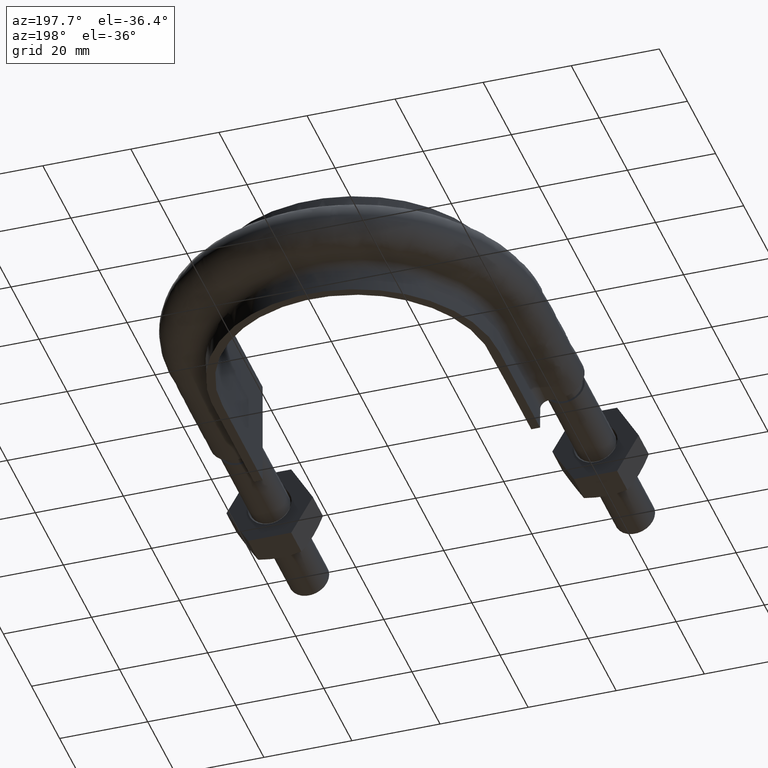
[diagram: clean part render]
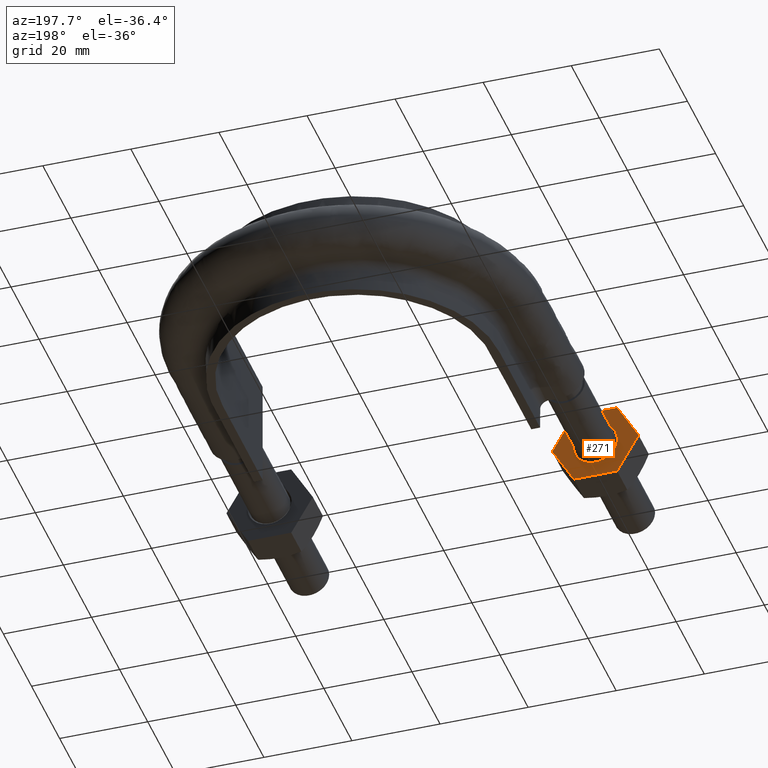
[diagram: same view with one face highlighted and labeled with its STEP entity id]
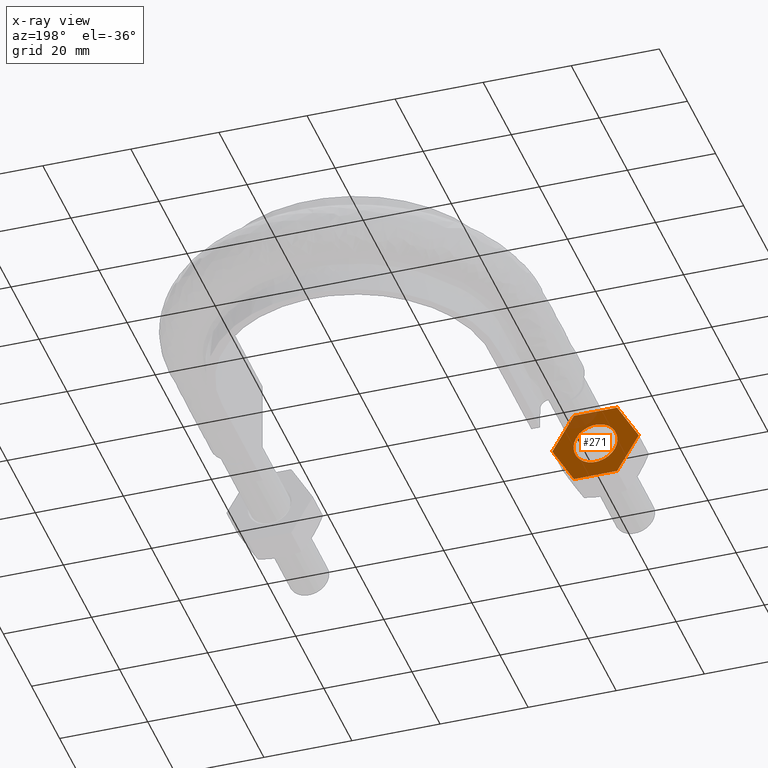
[diagram: x-ray of the same camera — body ghosted, the highlighted face saturated]
A machine part, auxiliary view. The second image highlights one B-rep face of the part: STEP entity #271.
The next image is the same camera in x-ray: the body ghosted, the highlighted face saturated — about 10% of this face is hidden behind the body in this view.
In plain terms, the highlighted planar face has unit normal (-0, -1, 0).
Its self-contained STEP definition (entity closure, byte-faithful):
#271 = ADVANCED_FACE( '', ( #414, #415 ), #416, .F. );
#414 = FACE_OUTER_BOUND( '', #1411, .T. );
#415 = FACE_BOUND( '', #1412, .T. );
#416 = PLANE( '', #1413 );
#1411 = EDGE_LOOP( '', ( #1814, #1815, #1816, #1817, #1818, #1819, #1820, #1821, #1822, #1823, #1824, #1825 ) );
#1412 = EDGE_LOOP( '', ( #1826 ) );
#1413 = AXIS2_PLACEMENT_3D( '', #1827, #1828, #1829 );
#1814 = ORIENTED_EDGE( '', *, *, #2101, .T. );
#1815 = ORIENTED_EDGE( '', *, *, #2077, .T. );
#1816 = ORIENTED_EDGE( '', *, *, #2102, .T. );
#1817 = ORIENTED_EDGE( '', *, *, #2099, .T. );
#1818 = ORIENTED_EDGE( '', *, *, #2057, .T. );
#1819 = ORIENTED_EDGE( '', *, *, #2093, .T. );
#1820 = ORIENTED_EDGE( '', *, *, #2087, .T. );
#1821 = ORIENTED_EDGE( '', *, *, #2062, .T. );
#1822 = ORIENTED_EDGE( '', *, *, #2066, .T. );
#1823 = ORIENTED_EDGE( '', *, *, #2071, .T. );
#1824 = ORIENTED_EDGE( '', *, *, #2097, .T. );
#1825 = ORIENTED_EDGE( '', *, *, #2095, .T. );
#1826 = ORIENTED_EDGE( '', *, *, #2090, .F. );
#1827 = CARTESIAN_POINT( '', ( -41.9000000000000, 28.0000000000000, 8.48704895708750 ) );
#1828 = DIRECTION( '', ( -2.44921270764476E-016, -1.00000000000000, 6.12303176911189E-017 ) );
#1829 = DIRECTION( '', ( -1.00000000000000, 2.44921270764476E-016, -3.01888774004914E-048 ) );
#2057 = EDGE_CURVE( '', #2246, #2244, #2247, .F. );
#2062 = EDGE_CURVE( '', #2256, #2254, #2257, .T. );
#2066 = EDGE_CURVE( '', #2254, #2261, #2263, .F. );
#2071 = EDGE_CURVE( '', #2261, #2269, #2271, .T. );
#2077 = EDGE_CURVE( '', #2281, #2279, #2282, .T. );
#2087 = EDGE_CURVE( '', #2297, #2256, #2298, .F. );
#2090 = EDGE_CURVE( '', #2301, #2301, #2302, .F. );
#2093 = EDGE_CURVE( '', #2244, #2297, #2306, .T. );
#2095 = EDGE_CURVE( '', #2309, #2307, #2310, .T. );
#2097 = EDGE_CURVE( '', #2269, #2309, #2312, .F. );
#2099 = EDGE_CURVE( '', #2314, #2246, #2315, .T. );
#2101 = EDGE_CURVE( '', #2307, #2281, #2317, .F. );
#2102 = EDGE_CURVE( '', #2279, #2314, #2318, .F. );
#2244 = VERTEX_POINT( '', #2751 );
#2246 = VERTEX_POINT( '', #2754 );
#2247 = CIRCLE( '', #2755, 9.80000000000000 );
#2254 = VERTEX_POINT( '', #2773 );
#2256 = VERTEX_POINT( '', #2776 );
#2257 = LINE( '', #2777, #2778 );
#2261 = VERTEX_POINT( '', #2783 );
#2263 = CIRCLE( '', #2786, 9.80000000000000 );
#2269 = VERTEX_POINT( '', #2802 );
#2271 = LINE( '', #2805, #2806 );
#2279 = VERTEX_POINT( '', #2824 );
#2281 = VERTEX_POINT( '', #2827 );
#2282 = LINE( '', #2828, #2829 );
#2297 = VERTEX_POINT( '', #2850 );
#2298 = CIRCLE( '', #2851, 9.80000000000000 );
#2301 = VERTEX_POINT( '', #2860 );
#2302 = CIRCLE( '', #2861, 5.00000000000000 );
#2306 = LINE( '', #2870, #2871 );
#2307 = VERTEX_POINT( '', #2872 );
#2309 = VERTEX_POINT( '', #2875 );
#2310 = LINE( '', #2876, #2877 );
#2312 = CIRCLE( '', #2880, 9.80000000000000 );
#2314 = VERTEX_POINT( '', #2887 );
#2315 = LINE( '', #2888, #2889 );
#2317 = CIRCLE( '', #2892, 9.80000000000000 );
#2318 = CIRCLE( '', #2893, 9.80000000000000 );
#2751 = CARTESIAN_POINT( '', ( -32.1225006406971, 28.0000000000000, -8.50000000000000 ) );
#2754 = CARTESIAN_POINT( '', ( -32.0775337474838, 28.0000000000000, -8.47403835209865 ) );
#2755 = AXIS2_PLACEMENT_3D( '', #3134, #3135, #3136 );
#2773 = CARTESIAN_POINT( '', ( -46.7999656118192, 28.0000000000000, -0.0259616479013412 ) );
#2776 = CARTESIAN_POINT( '', ( -41.9224662525163, 28.0000000000000, -8.47403835209864 ) );
#2777 = CARTESIAN_POINT( '', ( -49.2612159321677, 28.0000000000000, 4.23704895708751 ) );
#2778 = VECTOR( '', #3139, 1000.00000000000 );
#2783 = CARTESIAN_POINT( '', ( -46.7999656118192, 28.0000000000000, 0.0259616479013226 ) );
#2786 = AXIS2_PLACEMENT_3D( '', #3145, #3146, #3147 );
#2802 = CARTESIAN_POINT( '', ( -41.9224662525162, 28.0000000000000, 8.47403835209864 ) );
#2805 = CARTESIAN_POINT( '', ( -41.9112159321677, 28.0000000000000, 8.49352447854374 ) );
#2806 = VECTOR( '', #3152, 1000.00000000000 );
#2824 = CARTESIAN_POINT( '', ( -27.2000343881808, 28.0000000000000, 0.0259616479013282 ) );
#2827 = CARTESIAN_POINT( '', ( -32.0775337474837, 28.0000000000000, 8.47403835209864 ) );
#2828 = CARTESIAN_POINT( '', ( -34.5387840678323, 28.0000000000000, 12.7370489570875 ) );
#2829 = VECTOR( '', #3160, 1000.00000000000 );
#2850 = CARTESIAN_POINT( '', ( -41.8774993593029, 28.0000000000000, -8.50000000000000 ) );
#2851 = AXIS2_PLACEMENT_3D( '', #3183, #3184, #3185 );
#2860 = CARTESIAN_POINT( '', ( -32.0000000000000, 28.0000000000000, -1.97964474674129E-015 ) );
#2861 = AXIS2_PLACEMENT_3D( '', #3187, #3188, #3189 );
#2870 = CARTESIAN_POINT( '', ( -41.9000000000000, 28.0000000000000, -8.50000000000000 ) );
#2871 = VECTOR( '', #3193, 1000.00000000000 );
#2872 = CARTESIAN_POINT( '', ( -32.1225006406971, 28.0000000000000, 8.49999999999999 ) );
#2875 = CARTESIAN_POINT( '', ( -41.8774993593029, 28.0000000000000, 8.49999999999999 ) );
#2876 = CARTESIAN_POINT( '', ( -41.9000000000000, 28.0000000000000, 8.49999999999999 ) );
#2877 = VECTOR( '', #3195, 1000.00000000000 );
#2880 = AXIS2_PLACEMENT_3D( '', #3197, #3198, #3199 );
#2887 = CARTESIAN_POINT( '', ( -27.2000343881808, 28.0000000000000, -0.0259616479013161 ) );
#2888 = CARTESIAN_POINT( '', ( -27.1887840678323, 28.0000000000000, -0.00647552145623120 ) );
#2889 = VECTOR( '', #3200, 1000.00000000000 );
#2892 = AXIS2_PLACEMENT_3D( '', #3202, #3203, #3204 );
#2893 = AXIS2_PLACEMENT_3D( '', #3205, #3206, #3207 );
#3134 = CARTESIAN_POINT( '', ( -37.0000000000000, 28.0000000000000, -1.97964474674128E-015 ) );
#3135 = DIRECTION( '', ( -2.44921270764476E-016, -1.00000000000000, 6.12303176911189E-017 ) );
#3136 = DIRECTION( '', ( 1.00000000000000, -2.44921270764476E-016, 0.000000000000000 ) );
#3139 = DIRECTION( '', ( -0.500000000000000, 1.75487645984539E-016, 0.866025403784439 ) );
#3145 = CARTESIAN_POINT( '', ( -37.0000000000000, 28.0000000000000, -1.97964474674128E-015 ) );
#3146 = DIRECTION( '', ( -2.44921270764476E-016, -1.00000000000000, 6.12303176911189E-017 ) );
#3147 = DIRECTION( '', ( 1.00000000000000, -2.44921270764476E-016, 0.000000000000000 ) );
#3152 = DIRECTION( '', ( 0.500000000000000, -6.94336247799373E-017, 0.866025403784439 ) );
#3160 = DIRECTION( '', ( 0.500000000000000, -1.75487645984539E-016, -0.866025403784439 ) );
#3183 = CARTESIAN_POINT( '', ( -37.0000000000000, 28.0000000000000, -1.97964474674128E-015 ) );
#3184 = DIRECTION( '', ( -2.44921270764476E-016, -1.00000000000000, 6.12303176911189E-017 ) );
#3185 = DIRECTION( '', ( 1.00000000000000, -2.44921270764476E-016, 0.000000000000000 ) );
#3187 = CARTESIAN_POINT( '', ( -37.0000000000000, 28.0000000000000, -1.97964474674129E-015 ) );
#3188 = DIRECTION( '', ( -2.44921270764476E-016, -1.00000000000000, 6.12303176911189E-017 ) );
#3189 = DIRECTION( '', ( 1.00000000000000, -2.44921270764476E-016, 0.000000000000000 ) );
#3193 = DIRECTION( '', ( -1.00000000000000, 2.44921270764476E-016, -1.49966072182214E-032 ) );
#3195 = DIRECTION( '', ( 1.00000000000000, -2.44921270764476E-016, 1.49966072182214E-032 ) );
#3197 = CARTESIAN_POINT( '', ( -37.0000000000000, 28.0000000000000, -1.97964474674128E-015 ) );
#3198 = DIRECTION( '', ( -2.44921270764476E-016, -1.00000000000000, 6.12303176911189E-017 ) );
#3199 = DIRECTION( '', ( 1.00000000000000, -2.44921270764476E-016, 0.000000000000000 ) );
#3200 = DIRECTION( '', ( -0.500000000000000, 6.94336247799373E-017, -0.866025403784439 ) );
#3202 = CARTESIAN_POINT( '', ( -37.0000000000000, 28.0000000000000, -1.97964474674128E-015 ) );
#3203 = DIRECTION( '', ( -2.44921270764476E-016, -1.00000000000000, 6.12303176911189E-017 ) );
#3204 = DIRECTION( '', ( 1.00000000000000, -2.44921270764476E-016, 0.000000000000000 ) );
#3205 = CARTESIAN_POINT( '', ( -37.0000000000000, 28.0000000000000, -1.97964474674128E-015 ) );
#3206 = DIRECTION( '', ( -2.44921270764476E-016, -1.00000000000000, 6.12303176911189E-017 ) );
#3207 = DIRECTION( '', ( 1.00000000000000, -2.44921270764476E-016, 0.000000000000000 ) );